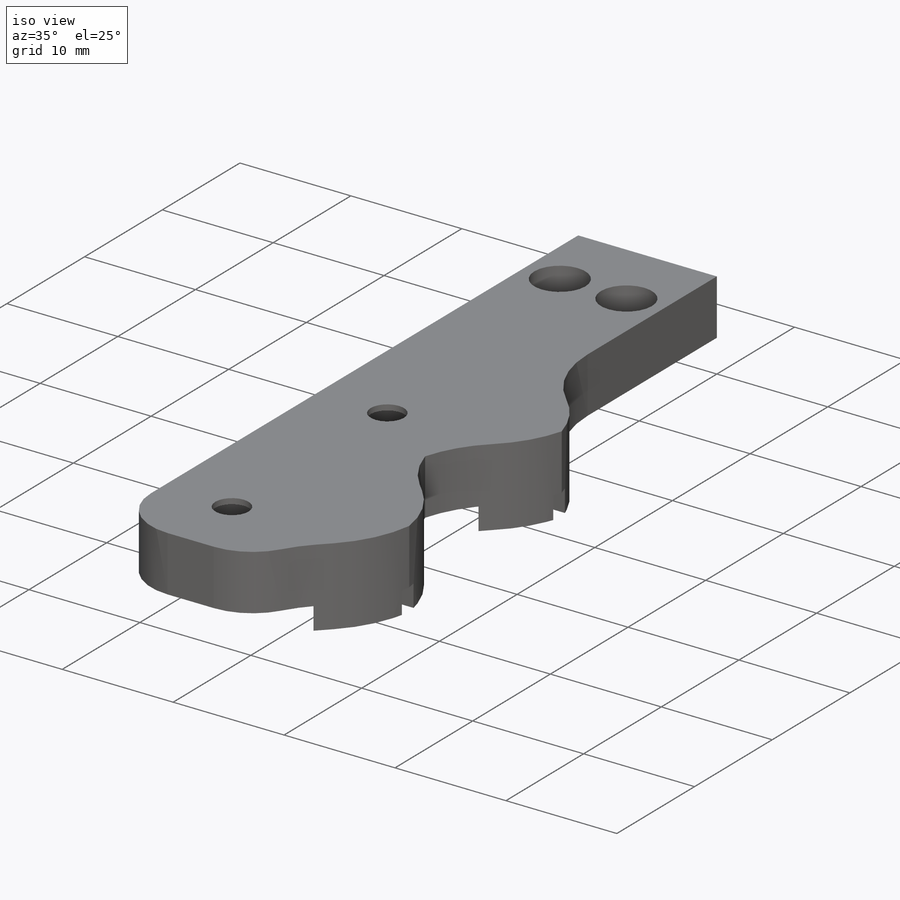
[diagram: iso view]
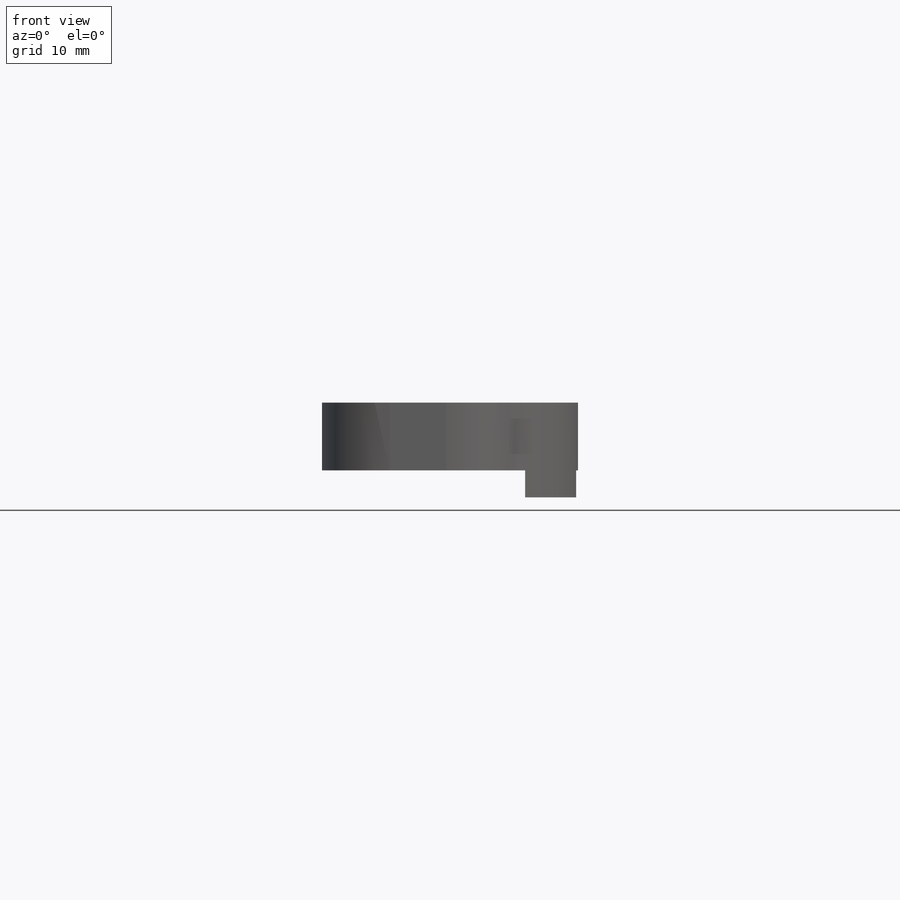
[diagram: front view]
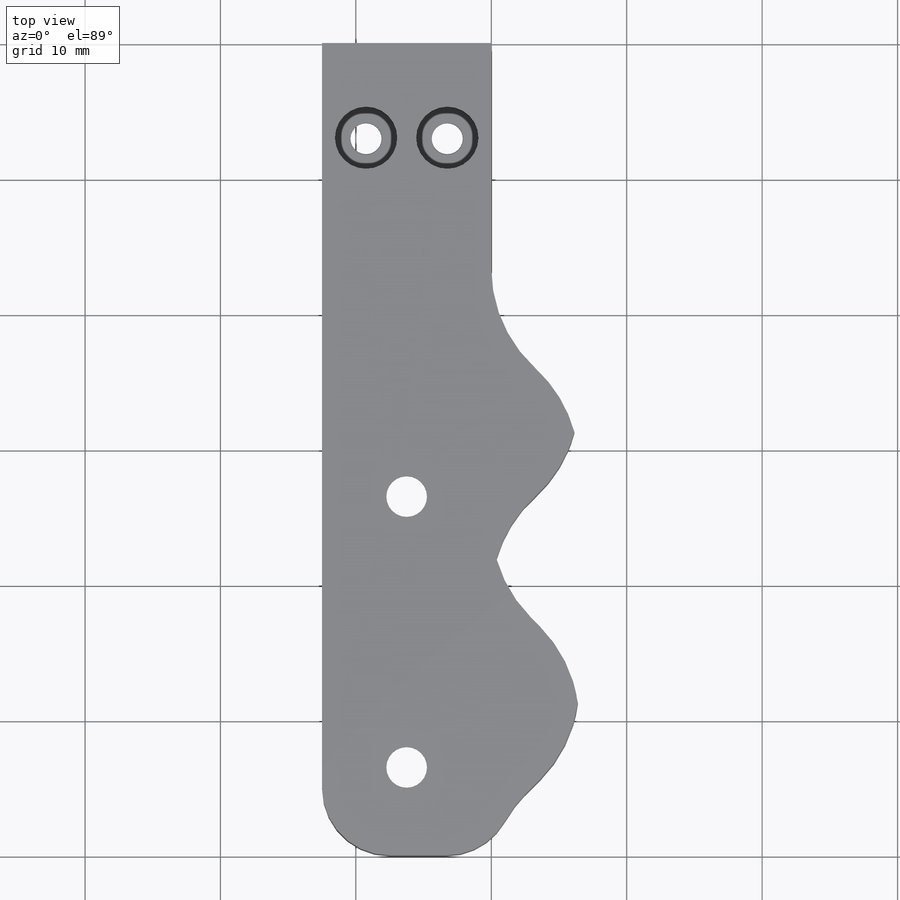
[diagram: top view]
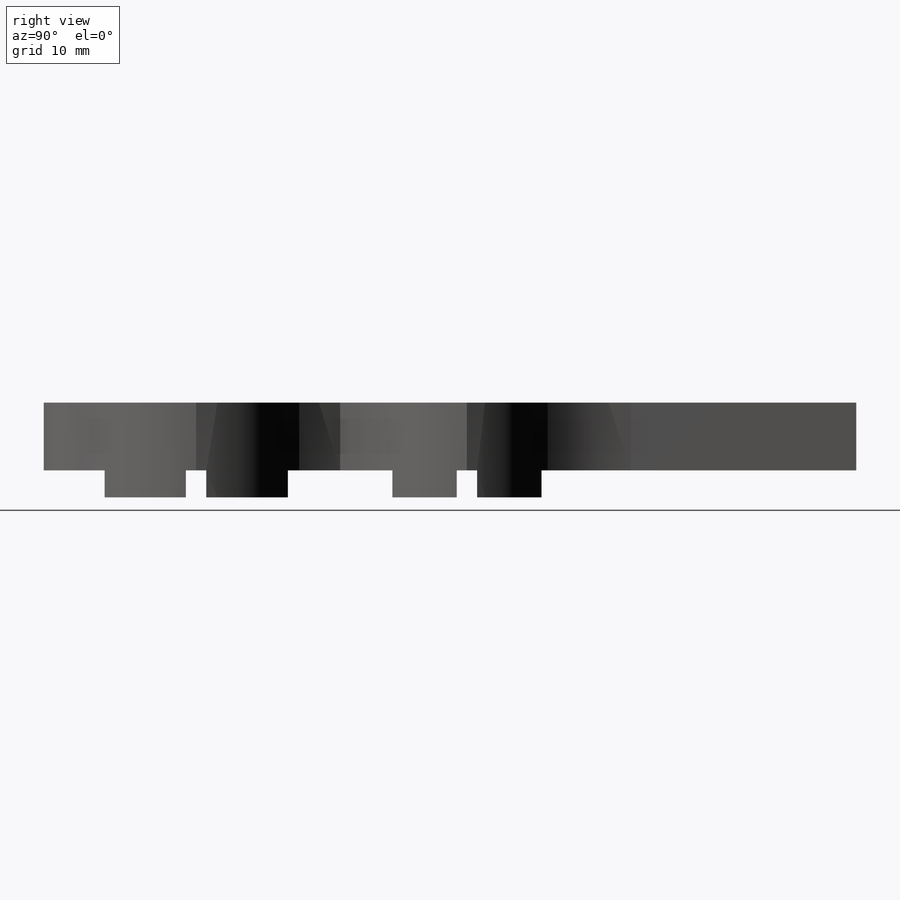
[diagram: right view]
SOLIDWORKS PART (.sldprt)
format: sldprt  version: not decoded by parser v0  size: 327,168 bytes
history: native  units: mm
features: sketch x7, plane x4, extrude x3, fillet x3, cut_extrude x2, material x1, hole x1, pattern_linear x1, chamfer x1, mirror x1, delete_body x1 (+9 scaffold rows collapsed)
feature tree (34):
  scaffold x9  (default folders/planes/origin — collapsed)
  material  "Matériau <non spécifié>"
  plane  "Plan de face"
  plane  "Plan de dessus"
  plane  "Plan de droite"
  sketch  "Sketch1"  dims[D1=12.5mm D2=5.0mm]
  extrude  "Boss-Extrude1"  Depth=60mm
  sketch  "Sketch2"  dims[c1.D1=3.0mm c1.D3=3.0mm c1.D4=3.0mm c1.D2=53.5mm c2.D3=6.25mm c2.D4=6.0mm]
  cut_extrude  "Cut-Extrude1"  [1 undecoded]
  hole  "CBORE for M2 Hex Socket Head Cap Screw1"  Diameter=2.3mm Depth=5mm
  sketch  "Sketch4"  dims[D1=7.0mm D2=7.0mm D3=3.25mm D4=3.25mm]
  sketch  "Sketch3"  dims[hole-wizard template sketch: 42 standard entries collapsed; hole parameters kept: c12.Thru Hole Depth=5.0mm c12.C'Bore Dia.=4.6mm c12.C'Bore Depth=3.5mm c12.Mid C'Sink Dia.=2.4mm c12.D6=~5.388154mm c12.Mid C'Sink Angle=90.0deg]
  sketch  "Sketch5"  dims[c1.D1=5.5mm c1.D2=5.0mm c2.D2=90.0deg c3.D2=5.0mm c4.D2=90.0deg c5.D2=5.0mm c6.D2=90.0deg c7.D2=5.0mm c8.D2=90.0deg c9.D2=3.0mm c10.D2=90.0deg c11.D2=3.0mm c12.D2=90.0deg c13.D2=3.0mm c14.D2=90.0deg c15.D2=2.0mm]
  extrude  "Boss-Extrude2"  Depth=6.5mm
  sketch  "Sketch6"  dims[D1=2.0mm D2=2.0mm D3=4.0mm D4=4.0mm]
  extrude  "Boss-Extrude3"  Depth=2mm
  sketch  "Sketch7"  dims[D1=10.3mm]
  cut_extrude  "Cut-Extrude2"  Depth=4.5mm
  pattern_linear  "LPattern1"  Count1=2 Count2=1 Spacing1=20mm Spacing2=10mm
  chamfer  "Chamfer1"  Distance=6.5mm Angle=45deg
  fillet  "Fillet1"  Radius=10mm
  fillet  "Fillet2"  Radius=5mm
  plane  "Plane1"  Offset=20mm
  mirror  "Mirror1"
  delete_body  "Body-Delete1"
  fillet  "Fillet3"  Radius=10mm
decode coverage: 17 of 20 modeling features carry decoded parameters
note: ~ marks probable driven/reference dimensions
note: 1 parameter value undecoded
note: suppression state not decoded; provenance and decode notes live in map.json
